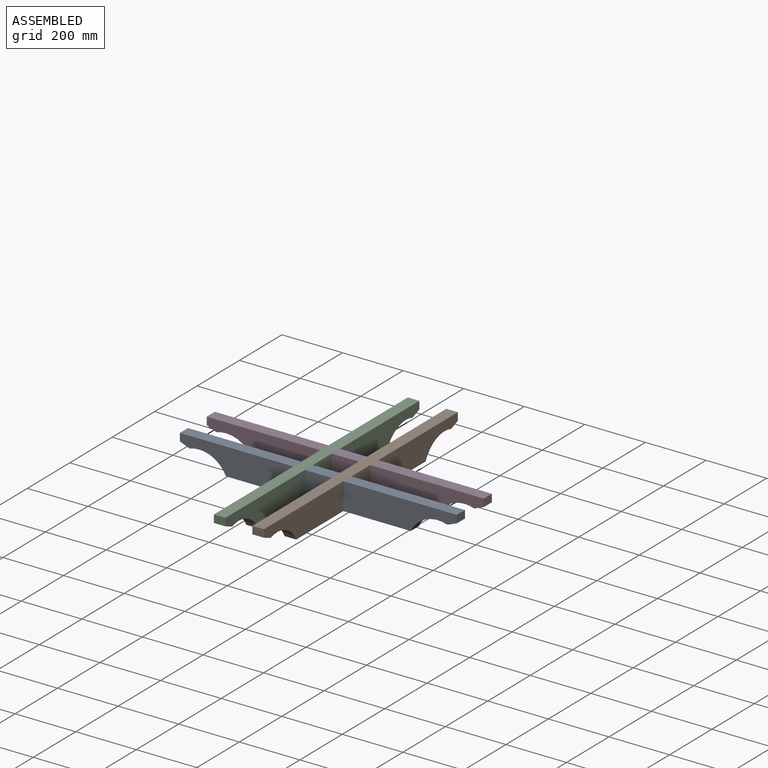
[diagram: assembled view]
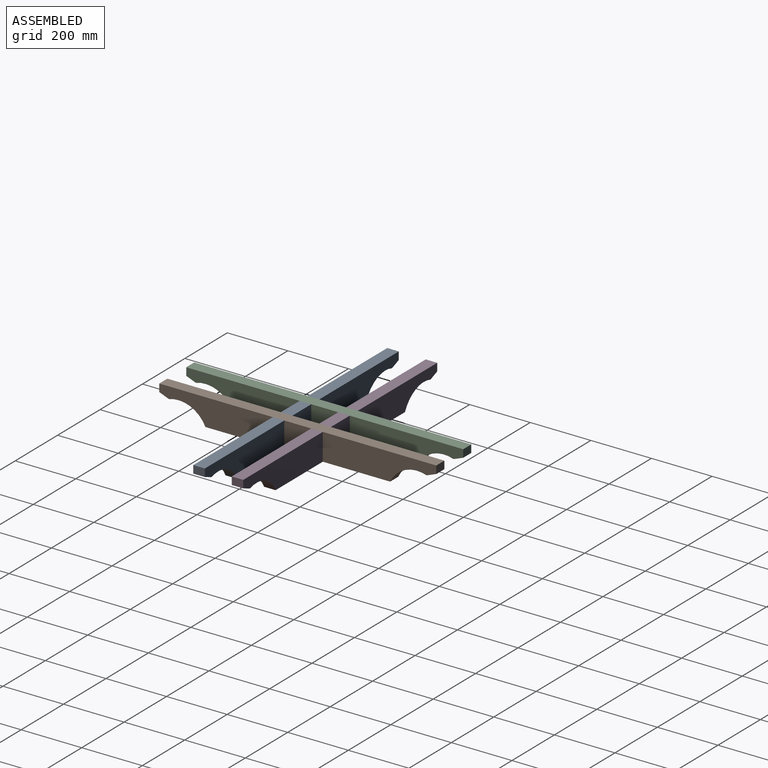
[diagram: assembled view, second angle]
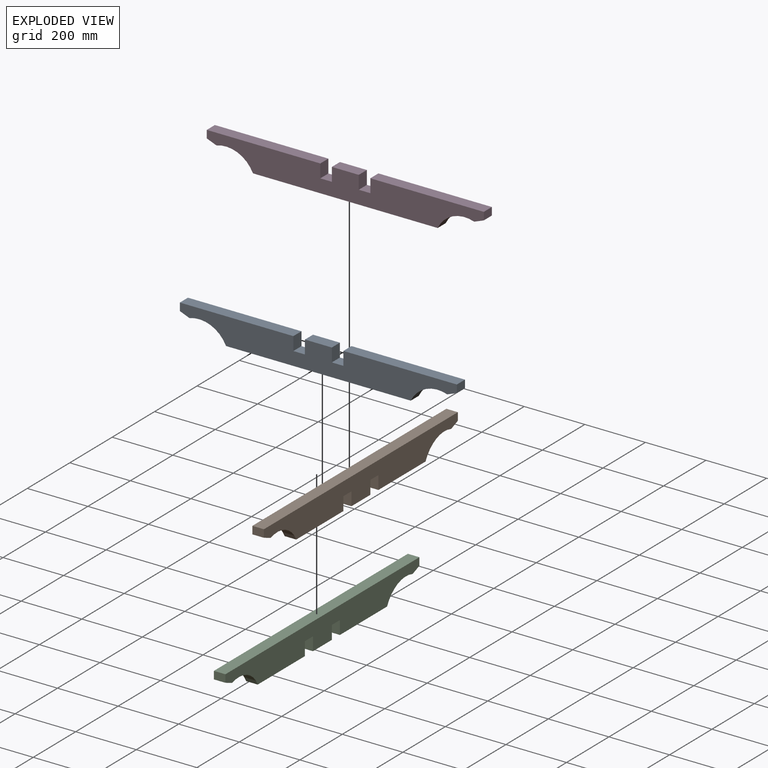
[diagram: exploded view]
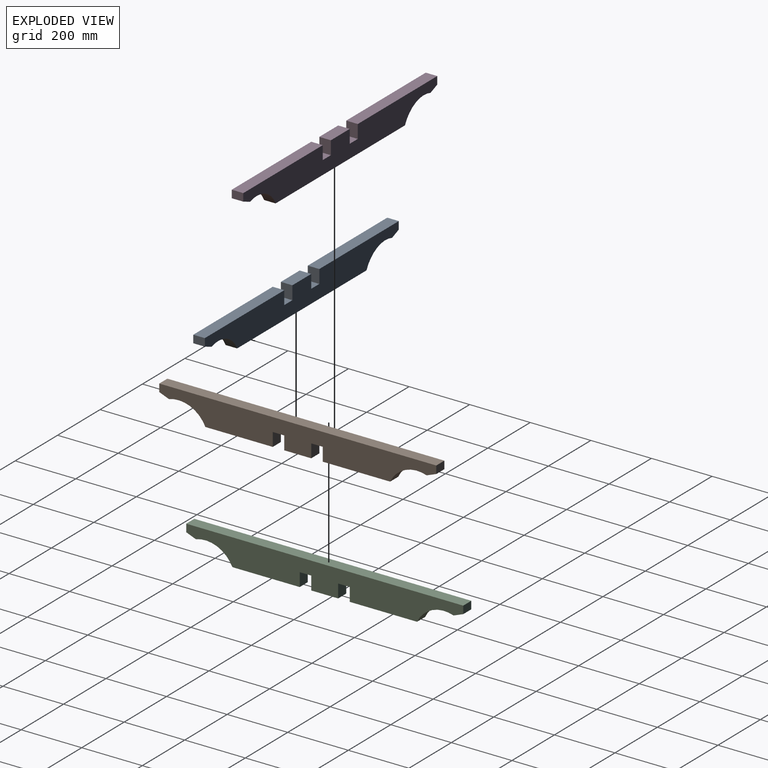
[diagram: exploded view, second angle]
ASSEMBLY  parts=4 mates=5
PART A: 18 faces, bbox 38.1x914.4x88.9 mm
  f0: plane 88.9x38.1mm, normal (0,0,1), area 3387.1mm2, adj f2,f3,f14,f17
  f1: plane 374.65x38.1mm, normal (0,0,1), area 14274.2mm2, adj f2,f3,f8,f13
  f2: plane 914.4x88.9mm, normal (1,0,0), area 63619mm2, adj f0,f1,f4,f5,f6,f7,f8,f9
  f3: plane 914.4x88.9mm, normal (-1,0,0), area 63619mm2, adj f0,f1,f4,f5,f6,f7,f8,f9
  f4: cylinder r=98.33mm len=120.65mm, axis (-1,0,0), area 5462.2mm2, adj f2,f3,f5,f11
  f5: plane 609.6x38.1mm, normal (0,0,-1), area 23225.8mm2, adj f2,f3,f4,f6
  f6: cylinder r=98.33mm len=120.65mm, axis (-1,0,0), area 5462.2mm2, adj f2,f3,f5,f7
  f7: plane 38.1x31.75mm, normal (0,0.37,-0.93), area 1299.5mm2, adj f2,f3,f6,f8
  f8: plane 38.1x25.4mm, normal (0,1,0), area 967.7mm2, adj f1,f2,f3,f7
  f9: plane 374.65x38.1mm, normal (0,0,1), area 14274.2mm2, adj f2,f3,f10,f15
  f10: plane 38.1x25.4mm, normal (0,-1,0), area 967.7mm2, adj f2,f3,f9,f11
  f11: plane 38.1x31.75mm, normal (0,-0.37,-0.93), area 1299.5mm2, adj f2,f3,f4,f10
  f12: plane 38.1x38.1mm, normal (0,0,1), area 1451.6mm2, adj f2,f3,f13,f14
  f13: plane 44.45x38.1mm, normal (0,-1,0), area 1693.5mm2, adj f1,f2,f3,f12
  f14: plane 44.45x38.1mm, normal (0,1,0), area 1693.5mm2, adj f0,f2,f3,f12
  f15: plane 44.45x38.1mm, normal (0,1,0), area 1693.5mm2, adj f2,f3,f9,f16
  f16: plane 38.1x38.1mm, normal (0,0,1), area 1451.6mm2, adj f2,f3,f15,f17
  f17: plane 44.45x38.1mm, normal (0,-1,0), area 1693.5mm2, adj f0,f2,f3,f16
PART B: 18 faces, bbox 38.1x914.4x88.9 mm
  f0: plane 88.9x38.1mm, normal (0,0,-1), area 3387.1mm2, adj f2,f3,f14,f17
  f1: plane 222.25x38.1mm, normal (0,0,-1), area 8467.7mm2, adj f2,f3,f6,f12
  f2: plane 914.4x88.9mm, normal (-1,0,0), area 63619mm2, adj f0,f1,f4,f5,f6,f7,f8,f9
  f3: plane 914.4x88.9mm, normal (1,0,0), area 63619mm2, adj f0,f1,f4,f5,f6,f7,f8,f9
  f4: cylinder r=98.33mm len=120.65mm, axis (1,0,0), area 5462.2mm2, adj f2,f3,f5,f11
  f5: plane 222.25x38.1mm, normal (0,0,-1), area 8467.7mm2, adj f2,f3,f4,f16
  f6: cylinder r=98.33mm len=120.65mm, axis (1,0,0), area 5462.2mm2, adj f1,f2,f3,f7
  f7: plane 38.1x31.75mm, normal (0,-0.37,-0.93), area 1299.5mm2, adj f2,f3,f6,f8
  f8: plane 38.1x25.4mm, normal (0,-1,0), area 967.7mm2, adj f2,f3,f7,f9
  f9: plane 914.4x38.1mm, normal (0,0,1), area 34838.6mm2, adj f2,f3,f8,f10
  f10: plane 38.1x25.4mm, normal (0,1,0), area 967.7mm2, adj f2,f3,f9,f11
  f11: plane 38.1x31.75mm, normal (0,0.37,-0.93), area 1299.5mm2, adj f2,f3,f4,f10
  f12: plane 44.45x38.1mm, normal (0,1,0), area 1693.5mm2, adj f1,f2,f3,f13
  f13: plane 38.1x38.1mm, normal (0,0,-1), area 1451.6mm2, adj f2,f3,f12,f14
  f14: plane 44.45x38.1mm, normal (0,-1,0), area 1693.5mm2, adj f0,f2,f3,f13
  f15: plane 38.1x38.1mm, normal (0,0,-1), area 1451.6mm2, adj f2,f3,f16,f17
  f16: plane 44.45x38.1mm, normal (0,-1,0), area 1693.5mm2, adj f2,f3,f5,f15
  f17: plane 44.45x38.1mm, normal (0,1,0), area 1693.5mm2, adj f0,f2,f3,f15
PART C: same geometry as B
PART D: same geometry as A
PLACE A rot(axis=(0,0,-1),90deg) t=(298.76,0,1304.03)mm
PLACE B t=(425.76,0,-358.54)mm
PLACE C t=(298.76,0,-358.54)mm fixed
PLACE D rot(axis=(0,0,-1),90deg) t=(298.76,127,1304.03)mm
MATE planar C.f12 <-> A.f2  axis (0,1,0) through (235.26,-82.55,3079.98)mm
MATE fastened D.f12 <-> B.f15  axis (0,0,1) through (362.26,63.5,3102.21)mm
MATE planar A.f16 <-> C.f13  axis (0,0,1) through (235.26,-63.5,3102.21)mm
MATE planar C.f3 <-> A.f17  axis (1,0,0) through (254.31,-82.55,3102.21)mm
MATE fastened B.f13 <-> A.f12  axis (0,0,-1) through (362.26,-63.5,3102.21)mm
